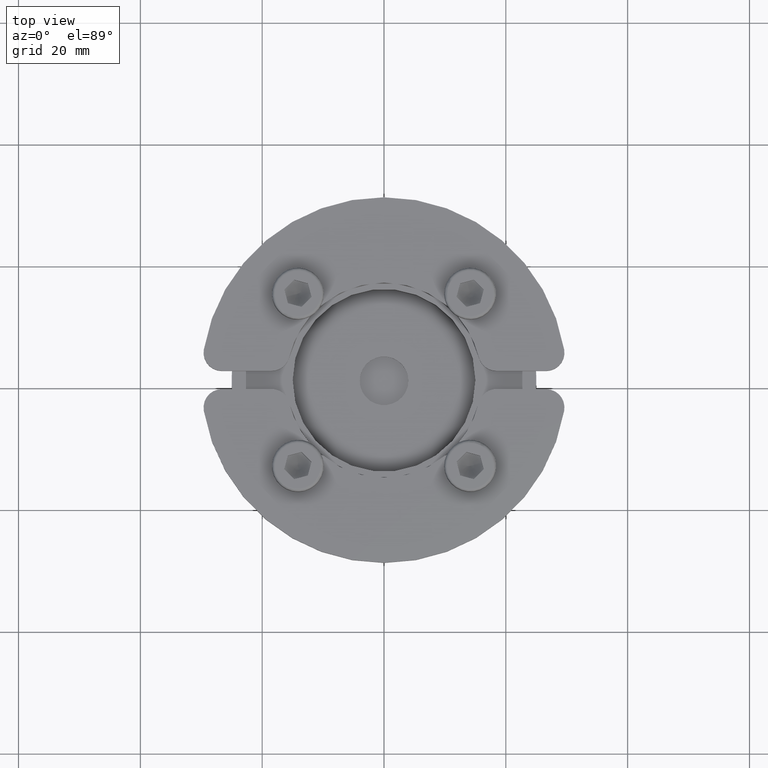
[diagram: clean part render]
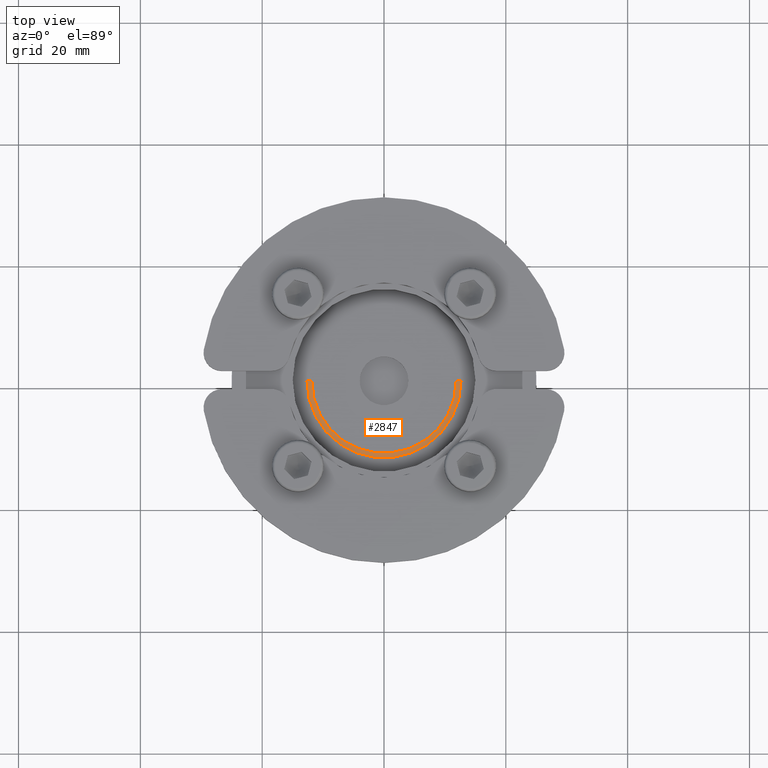
[diagram: same view with one face highlighted and labeled with its STEP entity id]
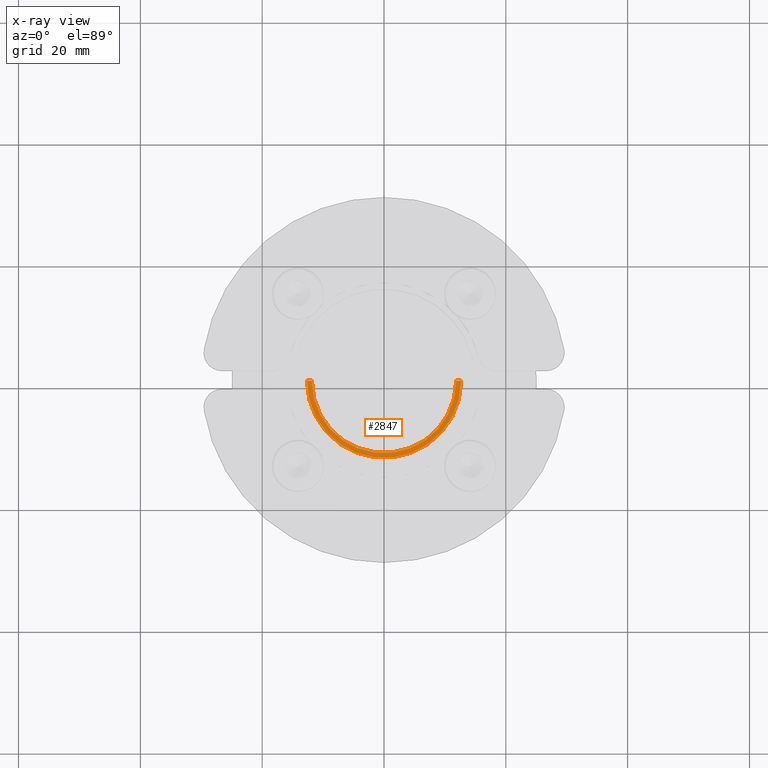
[diagram: x-ray of the same camera — body ghosted, the highlighted face saturated]
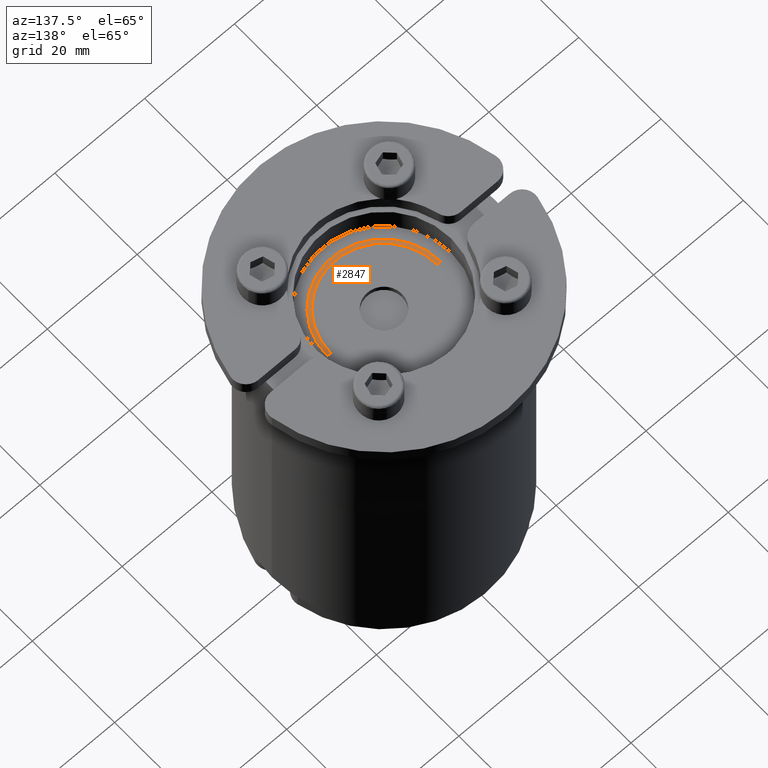
[diagram: same view with one face highlighted and labeled with its STEP entity id]
A machine part, top view. The second image highlights one B-rep face of the part: STEP entity #2847.
The next image is the same camera in x-ray: the body ghosted, the highlighted face saturated — about 0% of this face is hidden behind the body in this view.
A second angle (auxiliary view) of the same face is appended — the face is thin or edge-on in the first view.
In plain terms, the highlighted planar face has unit normal (0, 0, 1).
Its self-contained STEP definition (entity closure, byte-faithful):
#136=LINE('',#4595,#326);
#137=LINE('',#4596,#327);
#326=VECTOR('',#3645,10.);
#327=VECTOR('',#3646,10.);
#540=FACE_OUTER_BOUND('',#712,.T.);
#712=EDGE_LOOP('',(#1942,#1943,#1944,#1945));
#894=CIRCLE('',#3088,11.8571428571429);
#897=CIRCLE('',#3092,12.6428571428571);
#1125=VERTEX_POINT('',#4566);
#1126=VERTEX_POINT('',#4568);
#1128=VERTEX_POINT('',#4574);
#1131=VERTEX_POINT('',#4579);
#1417=EDGE_CURVE('',#1126,#1125,#894,.T.);
#1423=EDGE_CURVE('',#1131,#1128,#897,.T.);
#1430=EDGE_CURVE('',#1125,#1128,#136,.T.);
#1431=EDGE_CURVE('',#1126,#1131,#137,.T.);
#1942=ORIENTED_EDGE('',*,*,#1430,.T.);
#1943=ORIENTED_EDGE('',*,*,#1423,.F.);
#1944=ORIENTED_EDGE('',*,*,#1431,.F.);
#1945=ORIENTED_EDGE('',*,*,#1417,.T.);
#2548=PLANE('',#3097);
#2847=ADVANCED_FACE('',(#540),#2548,.T.);
#3088=AXIS2_PLACEMENT_3D('',#4569,#3618,#3619);
#3092=AXIS2_PLACEMENT_3D('',#4581,#3629,#3630);
#3097=AXIS2_PLACEMENT_3D('',#4594,#3643,#3644);
#3618=DIRECTION('center_axis',(0.,0.,-1.));
#3619=DIRECTION('ref_axis',(1.,-3.44509284839767E-16,0.));
#3629=DIRECTION('center_axis',(0.,0.,-1.));
#3630=DIRECTION('ref_axis',(1.,-3.44509284839767E-16,0.));
#3643=DIRECTION('center_axis',(0.,0.,1.));
#3644=DIRECTION('ref_axis',(-3.44509284839767E-16,-1.,0.));
#3645=DIRECTION('',(-1.,2.22044604925031E-16,5.6520444890008E-15));
#3646=DIRECTION('',(1.,-9.9579925010296E-17,5.6520444890008E-15));
#4566=CARTESIAN_POINT('',(-11.8571428571429,2.63281460125394E-15,-5.50000000000001));
#4568=CARTESIAN_POINT('',(11.8571428571429,-1.18073339655065E-15,-5.50000000000001));
#4569=CARTESIAN_POINT('Origin',(0.,0.,-5.50000000000001));
#4574=CARTESIAN_POINT('',(-12.6428571428571,2.80727821940932E-15,-5.5));
#4579=CARTESIAN_POINT('',(12.6428571428571,-1.2589747662016E-15,-5.50000000000001));
#4581=CARTESIAN_POINT('Origin',(0.,0.,-5.50000000000001));
#4594=CARTESIAN_POINT('Origin',(12.25,-4.22023873928714E-15,-5.5));
#4595=CARTESIAN_POINT('',(-11.8571428571429,2.63281460125394E-15,-5.50000000000001));
#4596=CARTESIAN_POINT('',(11.8571428571429,-1.18073339655065E-15,-5.50000000000001));